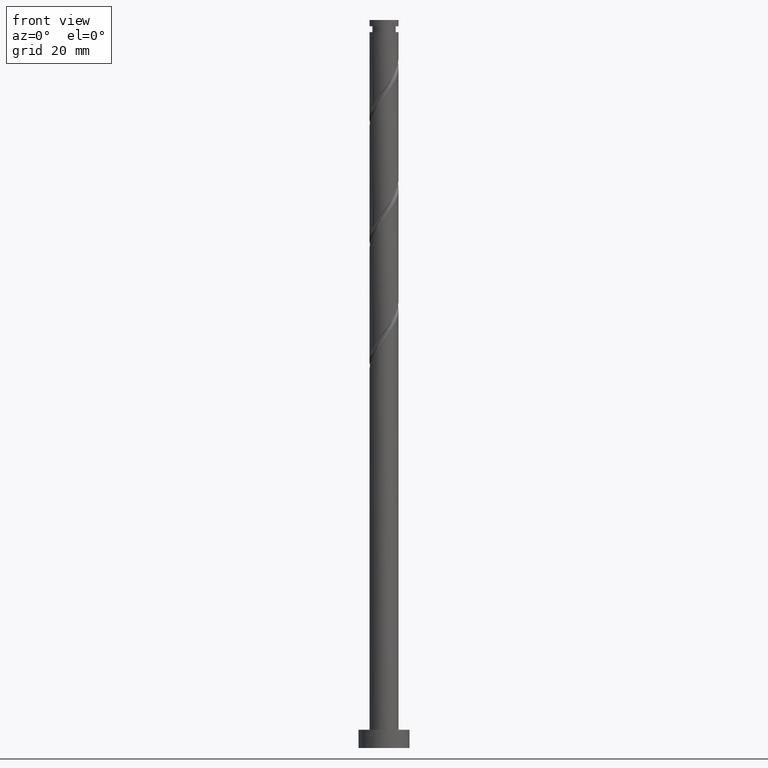
[diagram: clean part render]
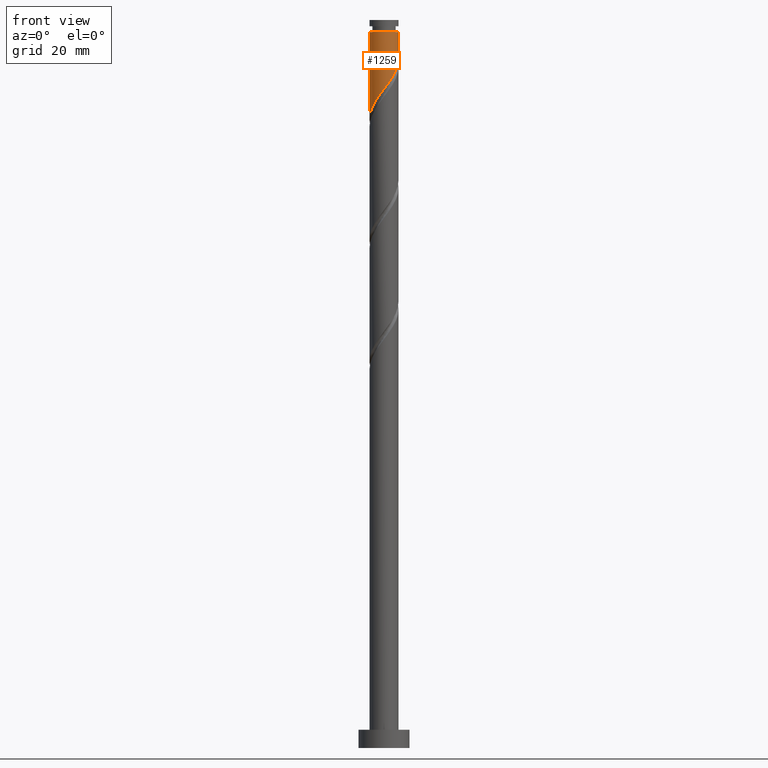
[diagram: same view with one face highlighted and labeled with its STEP entity id]
A machine part, front view. The second image highlights one B-rep face of the part: STEP entity #1259.
In plain terms, the highlighted cylindrical surface (edge-blend (fillet) strip) has radius 4 mm, axis along (-0, -0, -1).
Its self-contained STEP definition (entity closure, byte-faithful):
#1 = CARTESIAN_POINT ( 'NONE',  ( 1.270652482415433937, -3.792814557677647969, 182.7953251831729347 ) ) ;
#37 = EDGE_LOOP ( 'NONE', ( #1520, #438, #1292, #1596 ) ) ;
#45 = DIRECTION ( 'NONE',  ( -0.000000000000000000, -0.000000000000000000, -1.000000000000000000 ) ) ;
#75 = VECTOR ( 'NONE', #45, 1000.000000000000000 ) ;
#85 = CARTESIAN_POINT ( 'NONE',  ( 0.000000000000000000, 0.000000000000000000, 196.6842140720618204 ) ) ;
#121 = CARTESIAN_POINT ( 'NONE',  ( 3.345617825659324751, -2.254808073111004951, 186.2675474053952200 ) ) ;
#128 = CARTESIAN_POINT ( 'NONE',  ( -4.000000000000000888, -0.1229678066306855722, 172.9109444153000936 ) ) ;
#135 = VERTEX_POINT ( 'NONE', #1182 ) ;
#138 = CARTESIAN_POINT ( 'NONE',  ( -3.960099130553265123, -0.7713189730113381160, 173.7675474053951632 ) ) ;
#186 = VERTEX_POINT ( 'NONE', #938 ) ;
#205 = EDGE_CURVE ( 'NONE', #186, #492, #831, .T. ) ;
#252 = DIRECTION ( 'NONE',  ( -0.000000000000000000, -0.000000000000000000, -1.000000000000000000 ) ) ;
#259 = CARTESIAN_POINT ( 'NONE',  ( 0.2457034069343151383, -3.992446597741900582, 181.4064362942840205 ) ) ;
#268 = CARTESIAN_POINT ( 'NONE',  ( -3.625529984802032590, -1.769985991819530868, 175.1564362942840773 ) ) ;
#278 = CARTESIAN_POINT ( 'NONE',  ( 3.580411880364393618, -1.783437906669448347, 186.9619918498396487 ) ) ;
#353 = AXIS2_PLACEMENT_3D ( 'NONE', #85, #598, #460 ) ;
#354 = CARTESIAN_POINT ( 'NONE',  ( -3.999999999999999112, -2.153344959881298813E-15, 172.7477807272718735 ) ) ;
#366 = CARTESIAN_POINT ( 'NONE',  ( 0.000000000000000000, 0.000000000000000000, 200.0000000000000000 ) ) ;
#389 = CARTESIAN_POINT ( 'NONE',  ( -3.992446597741898806, -0.2457034069343163318, 173.0731029609507061 ) ) ;
#408 = CARTESIAN_POINT ( 'NONE',  ( 3.815205935069463816, -1.312067740227892187, 187.6564362942840489 ) ) ;
#420 = VERTEX_POINT ( 'NONE', #1223 ) ;
#438 = ORIENTED_EDGE ( 'NONE', *, *, #1709, .T. ) ;
#460 = DIRECTION ( 'NONE',  ( -1.000000000000000000, 0.000000000000000000, 0.000000000000000000 ) ) ;
#492 = VERTEX_POINT ( 'NONE', #354 ) ;
#530 = CARTESIAN_POINT ( 'NONE',  ( -2.254808073111003619, -3.345617825659326083, 177.9342140720618772 ) ) ;
#539 = CARTESIAN_POINT ( 'NONE',  ( 0.7713189730113366727, -3.960099130553265123, 182.1008807387285060 ) ) ;
#546 = CARTESIAN_POINT ( 'NONE',  ( 2.648031390325374268, -3.043886962058126588, 184.8786585165062490 ) ) ;
#548 = VECTOR ( 'NONE', #1430, 1000.000000000000000 ) ;
#567 = LINE ( 'NONE', #1648, #75 ) ;
#598 = DIRECTION ( 'NONE',  ( -0.000000000000000000, -0.000000000000000000, -1.000000000000000000 ) ) ;
#656 = CARTESIAN_POINT ( 'NONE',  ( -0.2799121591427067290, -4.024794064930535598, 180.7119918498395919 ) ) ;
#831 =( BOUNDED_CURVE ( )  B_SPLINE_CURVE ( 2, ( #1724, #1315, #1038, #408, #278, #121, #908, #546, #1733, #1452, #1, #539, #259, #656, #1597, #1067, #1202, #530, #1058, #1614, #1605, #268, #1076, #138, #389, #128, #1346 ),
 .UNSPECIFIED., .F., .T. ) 
 B_SPLINE_CURVE_WITH_KNOTS ( ( 3, 2, 2, 2, 2, 2, 2, 2, 2, 2, 2, 2, 2, 3 ),
 ( 0.3045317669814463502, 0.3125000000000000000, 0.3229166666666666852, 0.3333333333333333148, 0.3437500000000000000, 0.3541666666666666852, 0.3645833333333333148, 0.3750000000000000000, 0.3854166666666666852, 0.3958333333333333148, 0.4062500000000000000, 0.4166666666666666852, 0.4270833333333333148, 0.4295317669814464057 ),
 .UNSPECIFIED. ) 
 CURVE ( )  GEOMETRIC_REPRESENTATION_ITEM ( )  RATIONAL_B_SPLINE_CURVE ( ( 0.9062941362546417245, 0.9031415850403459178, 0.9090909090909213841, 0.9013135103398396408, 0.9090909090909213841, 0.9013135103398396408, 0.9090909090909213841, 0.9013135103398396408, 0.9090909090909213841, 0.9013135103398396408, 0.9090909090909213841, 0.9013135103398396408, 0.9090909090909213841, 0.9013135103398396408, 0.9090909090909213841, 0.9013135103398396408, 0.9090909090909213841, 0.9013135103398396408, 0.9090909090909213841, 0.9013135103398396408, 0.9090909090909213841, 0.9013135103398396408, 0.9090909090909213841, 0.9013135103398396408, 0.9090909090909213841, 0.9072628343904149961, 0.9062941362546415025 ) ) 
 REPRESENTATION_ITEM ( '' )  );
#837 = EDGE_CURVE ( 'NONE', #135, #186, #567, .T. ) ;
#885 = CARTESIAN_POINT ( 'NONE',  ( -4.000000000000000000, 0.000000000000000000, 200.0000000000000000 ) ) ;
#899 = DIRECTION ( 'NONE',  ( -1.000000000000000000, 0.000000000000000000, 0.000000000000000000 ) ) ;
#908 = CARTESIAN_POINT ( 'NONE',  ( 2.996824607992349954, -2.649347517584564660, 185.5731029609506777 ) ) ;
#938 = CARTESIAN_POINT ( 'NONE',  ( 4.000000000000000000, 1.181348971045990261E-15, 189.4144473939385591 ) ) ;
#1023 = CYLINDRICAL_SURFACE ( 'NONE', #1417, 4.000000000000000000 ) ;
#1038 = CARTESIAN_POINT ( 'NONE',  ( 3.919999999999999929, -0.7959899496852976819, 188.3508807387285060 ) ) ;
#1058 = CARTESIAN_POINT ( 'NONE',  ( -2.649347517584564660, -2.996824607992349954, 177.2397696276174202 ) ) ;
#1067 = CARTESIAN_POINT ( 'NONE',  ( -1.312067740227891299, -3.815205935069465149, 179.3231029609507345 ) ) ;
#1076 = CARTESIAN_POINT ( 'NONE',  ( -3.792814557677647525, -1.270652482415434603, 174.4619918498395919 ) ) ;
#1147 = EDGE_CURVE ( 'NONE', #420, #492, #1149, .T. ) ;
#1149 = LINE ( 'NONE', #885, #548 ) ;
#1182 = CARTESIAN_POINT ( 'NONE',  ( 3.999999999999988010, 4.898587196589404940E-16, 196.6842140720618204 ) ) ;
#1202 = CARTESIAN_POINT ( 'NONE',  ( -1.783437906669446349, -3.580411880364394950, 178.6286585165062775 ) ) ;
#1223 = CARTESIAN_POINT ( 'NONE',  ( -3.999999999999988010, 0.000000000000000000, 196.6842140720618204 ) ) ;
#1259 = ADVANCED_FACE ( 'NONE', ( #1455 ), #1023, .T. ) ;
#1292 = ORIENTED_EDGE ( 'NONE', *, *, #1147, .T. ) ;
#1315 = CARTESIAN_POINT ( 'NONE',  ( 3.999999999999999112, -0.4020151261036908341, 188.8810210247492876 ) ) ;
#1331 = CIRCLE ( 'NONE', #353, 3.999999999999988010 ) ;
#1346 = CARTESIAN_POINT ( 'NONE',  ( -3.999999999999999112, -2.153344959881298813E-15, 172.7477807272718735 ) ) ;
#1417 = AXIS2_PLACEMENT_3D ( 'NONE', #366, #252, #899 ) ;
#1430 = DIRECTION ( 'NONE',  ( -0.000000000000000000, -0.000000000000000000, -1.000000000000000000 ) ) ;
#1452 = CARTESIAN_POINT ( 'NONE',  ( 1.769985991819530868, -3.625529984802032590, 183.4897696276173349 ) ) ;
#1455 = FACE_OUTER_BOUND ( 'NONE', #37, .T. ) ;
#1520 = ORIENTED_EDGE ( 'NONE', *, *, #837, .F. ) ;
#1596 = ORIENTED_EDGE ( 'NONE', *, *, #205, .F. ) ;
#1597 = CARTESIAN_POINT ( 'NONE',  ( -0.7959899496852974599, -3.919999999999999929, 180.0175474053951632 ) ) ;
#1605 = CARTESIAN_POINT ( 'NONE',  ( -3.334708473430078257, -2.209008691072453345, 175.8508807387284776 ) ) ;
#1614 = CARTESIAN_POINT ( 'NONE',  ( -3.043886962058126588, -2.648031390325375600, 176.5453251831729631 ) ) ;
#1648 = CARTESIAN_POINT ( 'NONE',  ( 4.000000000000000000, 4.898587196589412829E-16, 200.0000000000000000 ) ) ;
#1709 = EDGE_CURVE ( 'NONE', #135, #420, #1331, .T. ) ;
#1724 = CARTESIAN_POINT ( 'NONE',  ( 4.000000000000000000, 1.181348971045990261E-15, 189.4144473939385307 ) ) ;
#1733 = CARTESIAN_POINT ( 'NONE',  ( 2.209008691072452013, -3.334708473430079145, 184.1842140720618488 ) ) ;